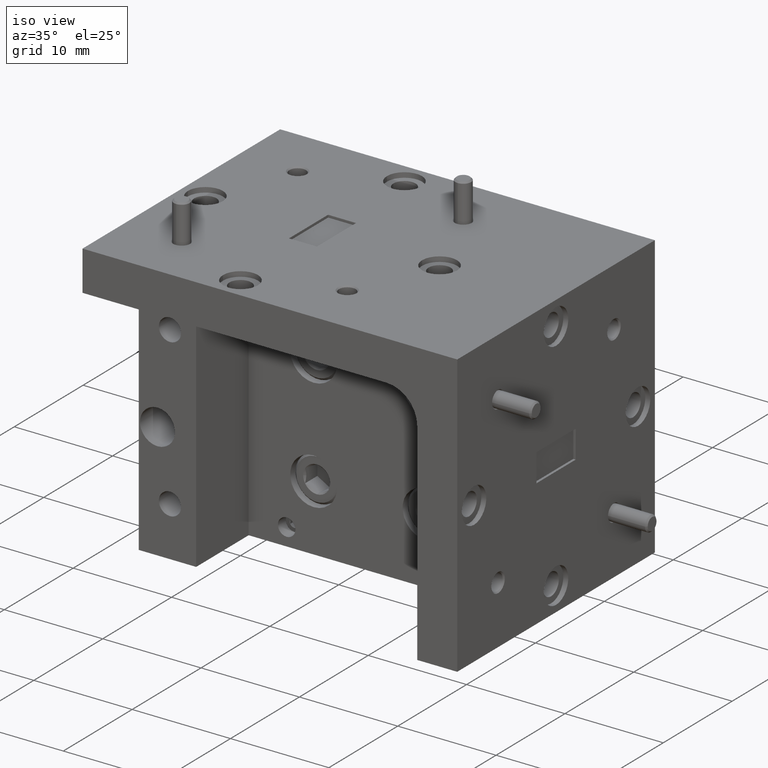
[diagram: clean part render]
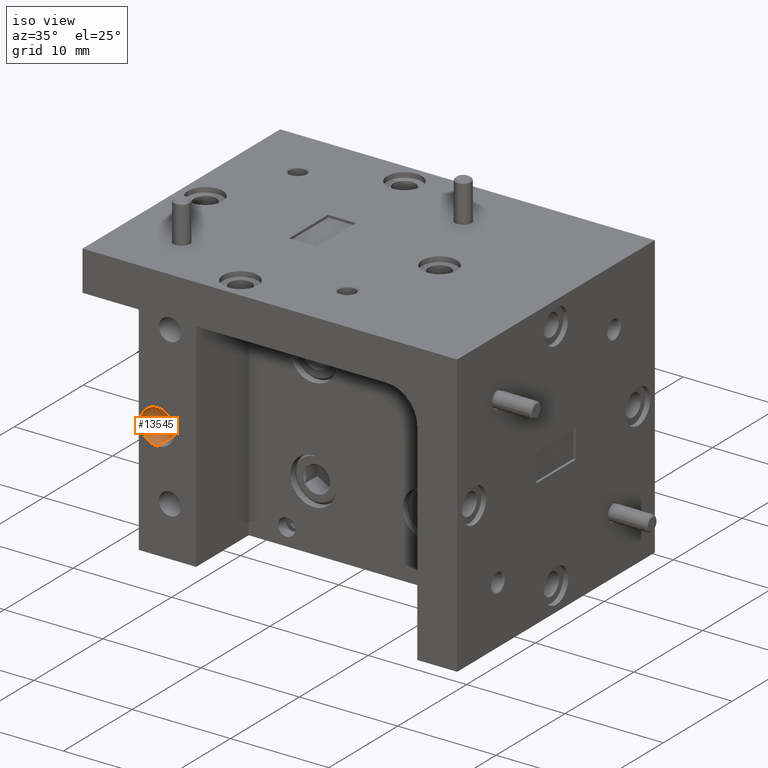
[diagram: same view with one face highlighted and labeled with its STEP entity id]
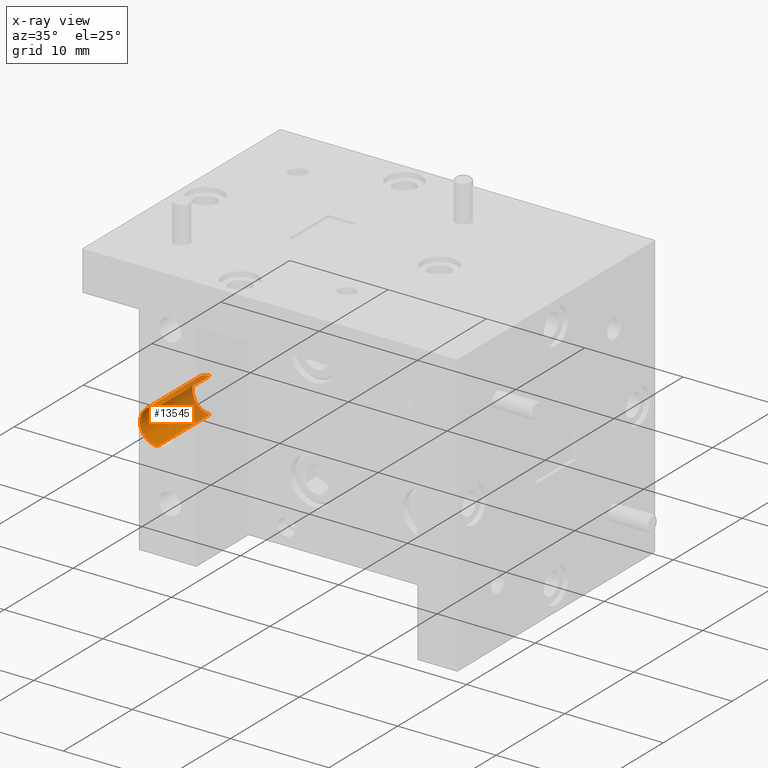
[diagram: x-ray of the same camera — body ghosted, the highlighted face saturated]
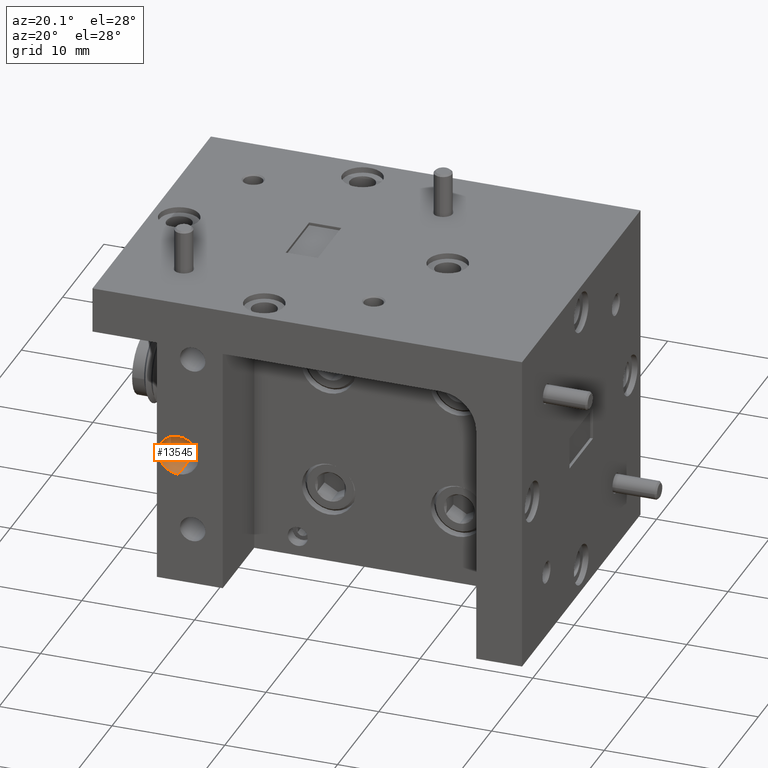
[diagram: same view with one face highlighted and labeled with its STEP entity id]
A machine part, iso view. The second image highlights one B-rep face of the part: STEP entity #13545.
The next image is the same camera in x-ray: the body ghosted, the highlighted face saturated — about 36% of this face is hidden behind the body in this view.
A second angle (auxiliary view) of the same face is appended — the face is thin or edge-on in the first view.
In plain terms, the highlighted cylindrical surface (edge-blend (fillet) strip) has radius 1.778 mm, axis along (-0, -1, -0).
Its self-contained STEP definition (entity closure, byte-faithful):
#239 = CIRCLE ( 'NONE', #19689, 0.06999999999999999300 ) ;
#654 = EDGE_CURVE ( 'NONE', #2349, #29821, #239, .T. ) ;
#849 = LINE ( 'NONE', #20419, #19673 ) ;
#1079 = CARTESIAN_POINT ( 'NONE',  ( -0.4499999999999999600, 0.0000000000000000000, -0.06999999999999950700 ) ) ;
#1684 = DIRECTION ( 'NONE',  ( 0.0000000000000000000, 0.0000000000000000000, -1.000000000000000000 ) ) ;
#2349 = VERTEX_POINT ( 'NONE', #5712 ) ;
#3310 = EDGE_CURVE ( 'NONE', #19099, #29821, #849, .T. ) ;
#3829 = ORIENTED_EDGE ( 'NONE', *, *, #7314, .F. ) ;
#3923 = AXIS2_PLACEMENT_3D ( 'NONE', #20101, #20215, #7791 ) ;
#5712 = CARTESIAN_POINT ( 'NONE',  ( -0.4499999999999999600, 0.0000000000000000000, 0.07000000000000046500 ) ) ;
#6213 = CARTESIAN_POINT ( 'NONE',  ( -0.4499999999999999600, 0.2999999999999999900, 4.780733988912460100E-016 ) ) ;
#7314 = EDGE_CURVE ( 'NONE', #11331, #19099, #11775, .T. ) ;
#7791 = DIRECTION ( 'NONE',  ( 0.0000000000000000000, 0.0000000000000000000, -1.000000000000000000 ) ) ;
#8035 = CARTESIAN_POINT ( 'NONE',  ( -0.4499999999999999600, 0.2999999999999999900, 0.07000000000000046500 ) ) ;
#9033 = CYLINDRICAL_SURFACE ( 'NONE', #31435, 0.06999999999999999300 ) ;
#9690 = CARTESIAN_POINT ( 'NONE',  ( -0.4499999999999999600, 0.2999999999999999900, -0.06999999999999950700 ) ) ;
#11331 = VERTEX_POINT ( 'NONE', #8035 ) ;
#11352 = ORIENTED_EDGE ( 'NONE', *, *, #654, .T. ) ;
#11775 = CIRCLE ( 'NONE', #3923, 0.06999999999999999300 ) ;
#13212 = FACE_OUTER_BOUND ( 'NONE', #20149, .T. ) ;
#13545 = ADVANCED_FACE ( 'NONE', ( #13212 ), #9033, .F. ) ;
#13895 = CARTESIAN_POINT ( 'NONE',  ( -0.4499999999999999600, 0.0000000000000000000, 4.780733988912460100E-016 ) ) ;
#14094 = ORIENTED_EDGE ( 'NONE', *, *, #3310, .F. ) ;
#14453 = DIRECTION ( 'NONE',  ( -0.0000000000000000000, -1.000000000000000000, -0.0000000000000000000 ) ) ;
#16202 = DIRECTION ( 'NONE',  ( 0.0000000000000000000, 0.0000000000000000000, -1.000000000000000000 ) ) ;
#16361 = DIRECTION ( 'NONE',  ( 0.0000000000000000000, -1.000000000000000000, 0.0000000000000000000 ) ) ;
#18979 = VECTOR ( 'NONE', #14453, 39.37007874015748100 ) ;
#19099 = VERTEX_POINT ( 'NONE', #9690 ) ;
#19673 = VECTOR ( 'NONE', #20018, 39.37007874015748100 ) ;
#19689 = AXIS2_PLACEMENT_3D ( 'NONE', #13895, #16361, #1684 ) ;
#20018 = DIRECTION ( 'NONE',  ( -0.0000000000000000000, -1.000000000000000000, -0.0000000000000000000 ) ) ;
#20101 = CARTESIAN_POINT ( 'NONE',  ( -0.4499999999999999600, 0.2999999999999999900, 4.780733988912460100E-016 ) ) ;
#20149 = EDGE_LOOP ( 'NONE', ( #3829, #30623, #11352, #14094 ) ) ;
#20215 = DIRECTION ( 'NONE',  ( 0.0000000000000000000, -1.000000000000000000, 0.0000000000000000000 ) ) ;
#20380 = CARTESIAN_POINT ( 'NONE',  ( -0.4499999999999999600, 0.2999999999999999900, 0.07000000000000046500 ) ) ;
#20419 = CARTESIAN_POINT ( 'NONE',  ( -0.4499999999999999600, 0.2999999999999999900, -0.06999999999999950700 ) ) ;
#21283 = LINE ( 'NONE', #20380, #18979 ) ;
#23505 = DIRECTION ( 'NONE',  ( -0.0000000000000000000, -1.000000000000000000, -0.0000000000000000000 ) ) ;
#25407 = EDGE_CURVE ( 'NONE', #11331, #2349, #21283, .T. ) ;
#29821 = VERTEX_POINT ( 'NONE', #1079 ) ;
#30623 = ORIENTED_EDGE ( 'NONE', *, *, #25407, .T. ) ;
#31435 = AXIS2_PLACEMENT_3D ( 'NONE', #6213, #23505, #16202 ) ;